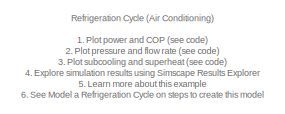
[diagram: root canvas - part 1/3, top right region]
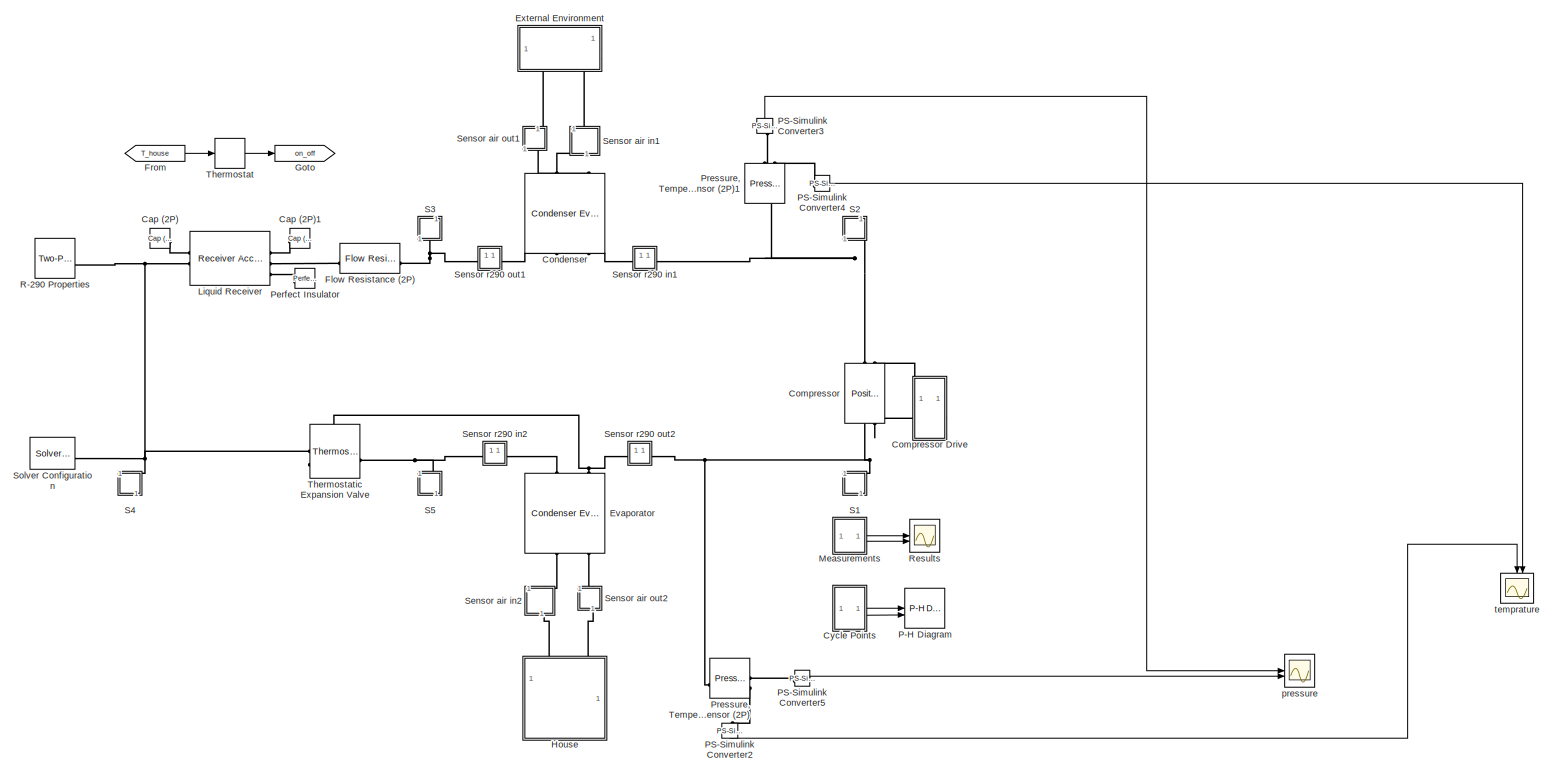
[diagram: root canvas - part 2/3, center side, full height]
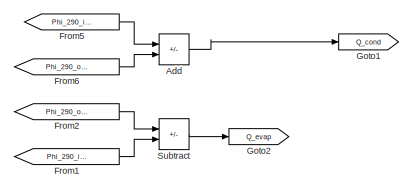
[diagram: root canvas - part 3/3, bottom left region]
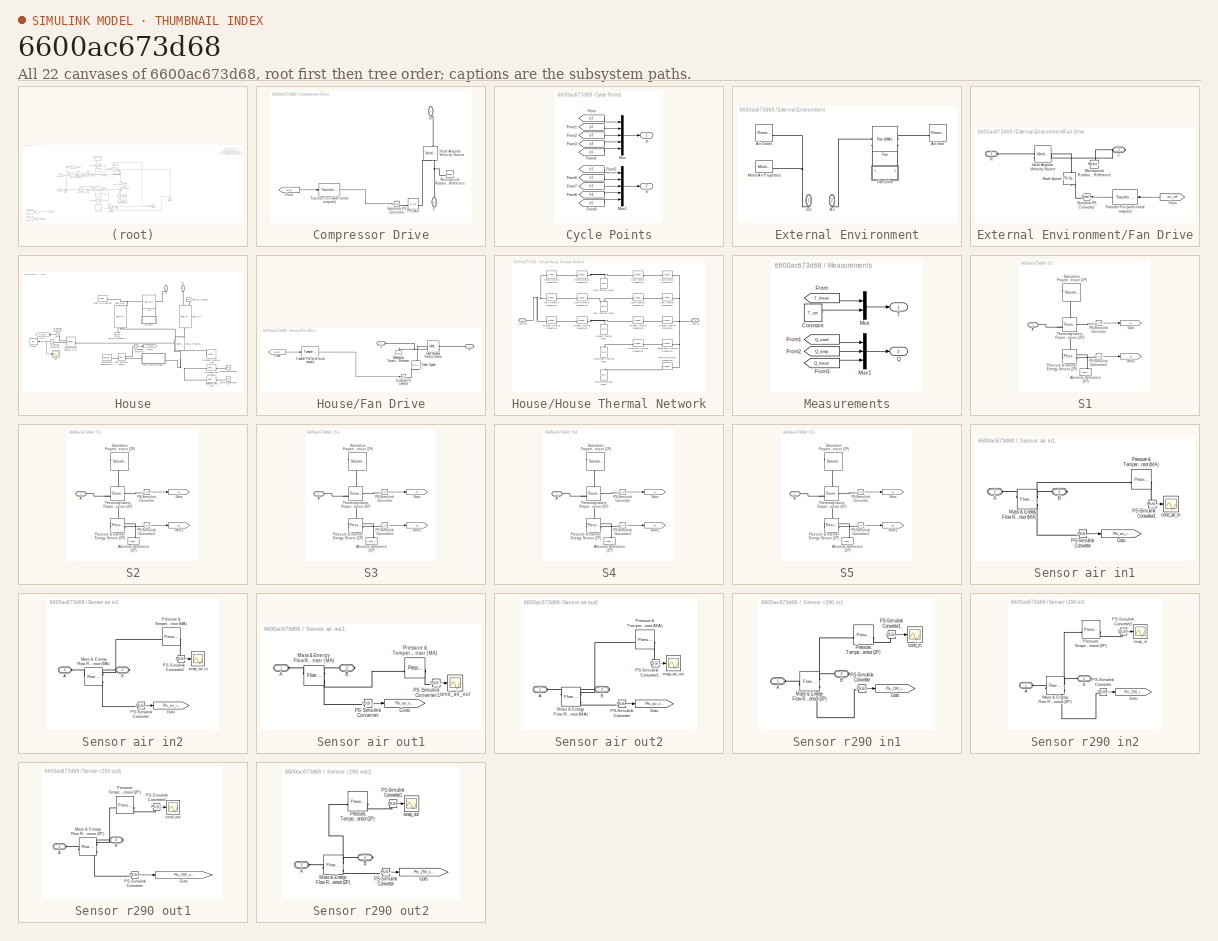
[diagram: thumbnail index - all 22 canvases of the model, root first then tree order]
MODEL slx_6600ac673d68
KIND model
CONFIG AbsTol = 0.01
CONFIG EnableMultiTasking = off
CONFIG FixedStep = 5.0E-5
CONFIG MaxStep = auto
CONFIG MinStep = auto
CONFIG PreLoadFcn = T_env = 30; % [degC] External environment temperature\nRH_env = 0.5; % External environment relative humidity\n\nT_house_init = 30; % [degC] Initial house temperature\nRH_house_init = 0.5; % Initial house relative humidity\n\nT_set = 22; % [deg] Thermostat set point\n\ntube_D = 0.02; % [m] Refrigerant tube diameter\nduct_W = 0.4; % [m] Air duct width\n\nhouse_L = 20; % [m] House length\nhouse_W = 10; % [m] Ho...<+77ch>
CONFIG RelTol = 0.01
CONFIG SampleTimeConstraint = Unconstrained
CONFIG SolverName = daessc
CONFIG StartTime = 0.0
CONFIG StopTime = 3600 * 3
WORKSPACE source: mxarray member
WORKSPACE evp_RPM = 3000
BLOCK [Sum] Add
  IconShape = rectangular
  Inputs = +-
BLOCK [Reference] Cap (2P)  REF=fl_lib/Two-Phase Fluid/Elements/Cap (2P)
  SourceBlock = fl_lib/Two-Phase Fluid/Elements/Cap (2P)
  SourceType = Cap (2P)
BLOCK [Reference] Cap (2P)1  REF=fl_lib/Two-Phase Fluid/Elements/Cap (2P)
  SourceBlock = fl_lib/Two-Phase Fluid/Elements/Cap (2P)
  SourceType = Cap (2P)
BLOCK [Reference] Compressor  REF=SimscapeFluids_lib/Two-Phase Fluid/Fluid Machines/Positive-Displacement
Compressor (2P)
  NameLocation = left
  SourceBlock = SimscapeFluids_lib/Two-Phase Fluid/Fluid Machines/Positive-Displacement\nCompressor (2P)
  SourceType = Positive-Displacement\nCompressor (2P)
BLOCK [SubSystem] Compressor Drive
  NameLocation = right
  PortSchema = {"entries":[{"content":{"sides":[{"content":{"connectorIds":[]},"type":"ConnectorPlacement.EquallySpacedRectSide","uuid":"e1f7673a-ae09-4e38-a748-d03f3a89f634"},{"content":{"connectorIds":[],"side":"RIGHT"},"type":"ConnectorPlacement.EquallySpacedRectSide","uuid":"e2c59df4-5a81-4f6b-ab06-631ef800c0b1"},{"content":{"connectorIds":["LConn1"],"side":"TOP"},"type":"ConnectorPlacement.EquallySpacedRect...<+389ch>
BLOCK [PMIOPort] Compressor Drive/C
  NameLocation = right
  Port = 2
  Side = Right
BLOCK [From] Compressor Drive/From
  GotoTag = on_off
  TagVisibility = global
BLOCK [Reference] Compressor Drive/Ideal Angular Velocity Source  REF=fl_lib/Mechanical/Mechanical Sources/Ideal Angular
Velocity Source
  NameLocation = right
  SourceBlock = fl_lib/Mechanical/Mechanical Sources/Ideal Angular\nVelocity Source
  SourceType = Ideal Angular\nVelocity Source
BLOCK [Reference] Compressor Drive/Mechanical Rotational Reference  REF=fl_lib/Mechanical/Rotational Elements/Mechanical
Rotational Reference
  SourceBlock = fl_lib/Mechanical/Rotational Elements/Mechanical\nRotational Reference
  SourceType = Mechanical\nRotational Reference
BLOCK [Reference] Compressor Drive/PS Gain  REF=fl_lib/Physical Signals/Functions/PS Gain
  SourceBlock = fl_lib/Physical Signals/Functions/PS Gain
  SourceType = PS Gain
BLOCK [PMIOPort] Compressor Drive/R
  NameLocation = right
  Side = Left
BLOCK [Reference] Compressor Drive/Simulink-PS Converter  REF=nesl_utility/Simulink-PS
Converter
  SourceBlock = nesl_utility/Simulink-PS\nConverter
  SourceType = Simulink-PS\nConverter
BLOCK [Reference] Compressor Drive/Transfer Fcn (with initial outputs)  REF=simulink_extras/Additional
Linear/Transfer Fcn
(with initial outputs)
  SourceBlock = simulink_extras/Additional\nLinear/Transfer Fcn\n(with initial outputs)
  SourceType = Transfer Function with Initial Outputs
BLOCK [Reference] Condenser  REF=SimscapeFluids_lib/Heat Exchangers/Two-Phase Fluid -
Moist Air/Condenser Evaporator
(2P-MA)
  NameLocation = left
  SourceBlock = SimscapeFluids_lib/Heat Exchangers/Two-Phase Fluid -\nMoist Air/Condenser Evaporator\n(2P-MA)
  SourceType = Condenser Evaporator\n(2P-MA)
BLOCK [SubSystem] Cycle Points
BLOCK [From] Cycle Points/From
  GotoTag = p1
  TagVisibility = global
BLOCK [From] Cycle Points/From1
  GotoTag = p2
  TagVisibility = global
BLOCK [From] Cycle Points/From2
  GotoTag = p3
  TagVisibility = global
BLOCK [From] Cycle Points/From3
  GotoTag = p4
  TagVisibility = global
BLOCK [From] Cycle Points/From4
  GotoTag = p5
  TagVisibility = global
BLOCK [From] Cycle Points/From5
  GotoTag = h1
  TagVisibility = global
BLOCK [From] Cycle Points/From6
  GotoTag = h2
  TagVisibility = global
BLOCK [From] Cycle Points/From7
  GotoTag = h3
  TagVisibility = global
BLOCK [From] Cycle Points/From8
  GotoTag = h4
  TagVisibility = global
BLOCK [From] Cycle Points/From9
  GotoTag = h5
  TagVisibility = global
BLOCK [Mux] Cycle Points/Mux
  DisplayOption = bar
  Inputs = 5
BLOCK [Mux] Cycle Points/Mux1
  DisplayOption = bar
  Inputs = 5
BLOCK [Outport] Cycle Points/h
  Port = 2
BLOCK [Outport] Cycle Points/p
BLOCK [Reference] Evaporator  REF=SimscapeFluids_lib/Heat Exchangers/Two-Phase Fluid -
Moist Air/Condenser Evaporator
(2P-MA)
  NameLocation = right
  SourceBlock = SimscapeFluids_lib/Heat Exchangers/Two-Phase Fluid -\nMoist Air/Condenser Evaporator\n(2P-MA)
  SourceType = Condenser Evaporator\n(2P-MA)
BLOCK [SubSystem] External Environment
  NameLocation = right
  PortSchema = {"entries":[{"content":{"sides":[{"content":{},"type":"ConnectorPlacement.EquallySpacedRectSide","uuid":"e1f7673a-ae09-4e38-a748-d03f3a89f634"},{"content":{"side":"RIGHT"},"type":"ConnectorPlacement.EquallySpacedRectSide","uuid":"e2c59df4-5a81-4f6b-ab06-631ef800c0b1"},{"content":{"side":"TOP"},"type":"ConnectorPlacement.EquallySpacedRectSide","uuid":"19dd88a8-04e0-4296-a227-9de66059cdf8"},{"conten...<+337ch>
  Tag = PublishSubsystem
BLOCK [PMIOPort] External Environment/A2
  NameLocation = right
  Port = 2
  Side = Right
BLOCK [Reference] External Environment/Air Inlet  REF=fl_lib/Moist Air/Elements/Reservoir (MA)
  SourceBlock = fl_lib/Moist Air/Elements/Reservoir (MA)
  SourceType = Reservoir (MA)
BLOCK [Reference] External Environment/Air Outlet  REF=fl_lib/Moist Air/Elements/Reservoir (MA)
  SourceBlock = fl_lib/Moist Air/Elements/Reservoir (MA)
  SourceType = Reservoir (MA)
BLOCK [PMIOPort] External Environment/B2
  NameLocation = right
  Side = Right
BLOCK [Reference] External Environment/Fan  REF=SimscapeFluids_lib/Moist Air/Turbomachinery/Fan (MA)
  SourceBlock = SimscapeFluids_lib/Moist Air/Turbomachinery/Fan (MA)
  SourceType = Fan (MA)
BLOCK [SubSystem] External Environment/Fan Drive
BLOCK [PMIOPort] External Environment/Fan Drive/C
  Port = 2
  Side = Right
BLOCK [From] External Environment/Fan Drive/From
  GotoTag = on_off
  TagVisibility = global
BLOCK [Reference] External Environment/Fan Drive/Ideal Angular Velocity Source  REF=fl_lib/Mechanical/Mechanical Sources/Ideal Angular
Velocity Source
  SourceBlock = fl_lib/Mechanical/Mechanical Sources/Ideal Angular\nVelocity Source
  SourceType = Ideal Angular\nVelocity Source
BLOCK [Reference] External Environment/Fan Drive/Mechanical Rotational Reference  REF=fl_lib/Mechanical/Rotational Elements/Mechanical
Rotational Reference
  NameLocation = right
  SourceBlock = fl_lib/Mechanical/Rotational Elements/Mechanical\nRotational Reference
  SourceType = Mechanical\nRotational Reference
BLOCK [PMIOPort] External Environment/Fan Drive/R
  Side = Left
BLOCK [Reference] External Environment/Fan Drive/Shaft Speed  REF=fl_lib/Physical Signals/Functions/PS Gain
  NameLocation = left
  SourceBlock = fl_lib/Physical Signals/Functions/PS Gain
  SourceType = PS Gain
BLOCK [Reference] External Environment/Fan Drive/Simulink-PS Converter  REF=nesl_utility/Simulink-PS
Converter
  SourceBlock = nesl_utility/Simulink-PS\nConverter
  SourceType = Simulink-PS\nConverter
BLOCK [Reference] External Environment/Fan Drive/Transfer Fcn (with initial outputs)  REF=simulink_extras/Additional
Linear/Transfer Fcn
(with initial outputs)
  SourceBlock = simulink_extras/Additional\nLinear/Transfer Fcn\n(with initial outputs)
  SourceType = Transfer Function with Initial Outputs
BLOCK [Reference] External Environment/Moist Air Properties  REF=fl_lib/Moist Air/Utilities/Moist Air Properties
(MA)
  SourceBlock = fl_lib/Moist Air/Utilities/Moist Air Properties\n(MA)
  SourceType = Moist Air Properties\n(MA)
BLOCK [Reference] Flow Resistance (2P)  REF=fl_lib/Two-Phase Fluid/Elements/Flow Resistance (2P)
  SourceBlock = fl_lib/Two-Phase Fluid/Elements/Flow Resistance (2P)
  SourceType = Flow Resistance (2P)
BLOCK [From] From
  GotoTag = T_house
  TagVisibility = global
BLOCK [From] From1
  GotoTag = Phi_290_in_evap
  TagVisibility = global
BLOCK [From] From2
  GotoTag = Phi_290_out_evap
  TagVisibility = global
BLOCK [From] From5
  GotoTag = Phi_290_in_cond
  TagVisibility = global
BLOCK [From] From6
  GotoTag = Phi_290_out_cond
  TagVisibility = global
BLOCK [Goto] Goto
  GotoTag = on_off
  TagVisibility = global
BLOCK [Goto] Goto1
  GotoTag = Q_cond
  TagVisibility = global
BLOCK [Goto] Goto2
  GotoTag = Q_evap
  TagVisibility = global
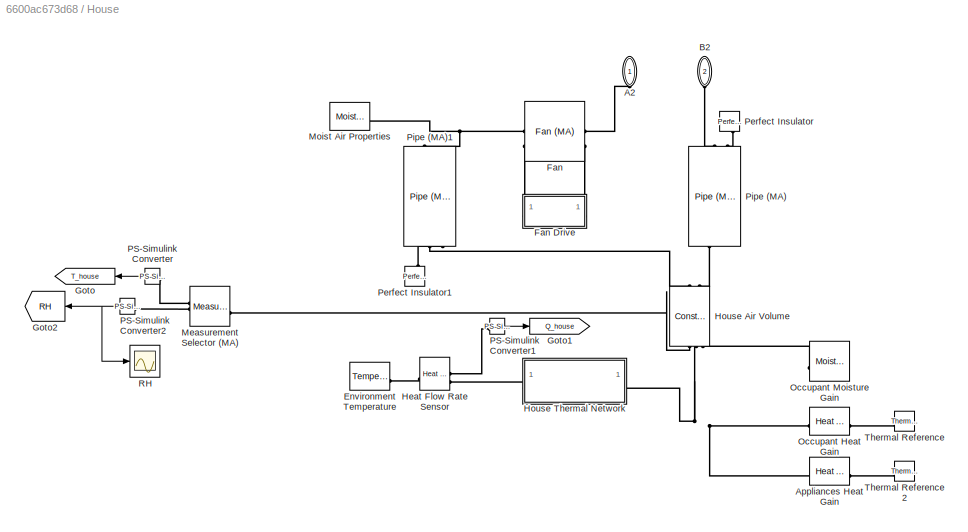
BLOCK [SubSystem] House
  NameLocation = right
  PortSchema = {"entries":[{"content":{"sides":[{"content":{"connectorIds":[]},"type":"ConnectorPlacement.EquallySpacedRectSide","uuid":"e1f7673a-ae09-4e38-a748-d03f3a89f634"},{"content":{"connectorIds":[],"side":"RIGHT"},"type":"ConnectorPlacement.EquallySpacedRectSide","uuid":"e2c59df4-5a81-4f6b-ab06-631ef800c0b1"},{"content":{"connectorIds":["LConn1","LConn2"],"side":"TOP"},"type":"ConnectorPlacement.EquallyS...<+246ch>
  Tag = PublishSubsystem
BLOCK [PMIOPort] House/A2
  NameLocation = right
  Side = Left
BLOCK [Reference] House/Appliances Heat Gain  REF=fl_lib/Thermal/Thermal Sources/Heat Flow Rate
Source
  SourceBlock = fl_lib/Thermal/Thermal Sources/Heat Flow Rate\nSource
  SourceType = Heat Flow Rate\nSource
BLOCK [PMIOPort] House/B2
  NameLocation = right
  Port = 2
  Side = Left
BLOCK [Reference] House/Environment Temperature  REF=fl_lib/Thermal/Thermal Sources/Temperature Source
  SourceBlock = fl_lib/Thermal/Thermal Sources/Temperature Source
  SourceType = Temperature Source
BLOCK [Reference] House/Fan  REF=SimscapeFluids_lib/Moist Air/Turbomachinery/Fan (MA)
  SourceBlock = SimscapeFluids_lib/Moist Air/Turbomachinery/Fan (MA)
  SourceType = Fan (MA)
BLOCK [SubSystem] House/Fan Drive
BLOCK [PMIOPort] House/Fan Drive/C
  Side = Left
BLOCK [From] House/Fan Drive/From
  GotoTag = on_off
  TagVisibility = global
BLOCK [Reference] House/Fan Drive/Ideal Angular Velocity Source  REF=fl_lib/Mechanical/Mechanical Sources/Ideal Angular
Velocity Source
  SourceBlock = fl_lib/Mechanical/Mechanical Sources/Ideal Angular\nVelocity Source
  SourceType = Ideal Angular\nVelocity Source
BLOCK [Reference] House/Fan Drive/Mechanical Rotational Reference  REF=fl_lib/Mechanical/Rotational Elements/Mechanical
Rotational Reference
  NameLocation = right
  SourceBlock = fl_lib/Mechanical/Rotational Elements/Mechanical\nRotational Reference
  SourceType = Mechanical\nRotational Reference
BLOCK [PMIOPort] House/Fan Drive/R
  Port = 2
  Side = Right
BLOCK [Reference] House/Fan Drive/Shaft Speed  REF=fl_lib/Physical Signals/Functions/PS Gain
  NameLocation = right
  SourceBlock = fl_lib/Physical Signals/Functions/PS Gain
  SourceType = PS Gain
BLOCK [Reference] House/Fan Drive/Simulink-PS Converter  REF=nesl_utility/Simulink-PS
Converter
  SourceBlock = nesl_utility/Simulink-PS\nConverter
  SourceType = Simulink-PS\nConverter
BLOCK [Reference] House/Fan Drive/Transfer Fcn (with initial outputs)  REF=simulink_extras/Additional
Linear/Transfer Fcn
(with initial outputs)
  SourceBlock = simulink_extras/Additional\nLinear/Transfer Fcn\n(with initial outputs)
  SourceType = Transfer Function with Initial Outputs
BLOCK [Goto] House/Goto
  GotoTag = T_house
  TagVisibility = global
BLOCK [Goto] House/Goto1
  GotoTag = Q_house
  TagVisibility = global
BLOCK [Goto] House/Goto2
  GotoTag = RH
  TagVisibility = global
BLOCK [Reference] House/Heat Flow Rate Sensor  REF=fl_lib/Thermal/Thermal Sensors/Heat Flow Rate
Sensor
  SourceBlock = fl_lib/Thermal/Thermal Sensors/Heat Flow Rate\nSensor
  SourceType = Heat Flow Rate\nSensor
BLOCK [Reference] House/House Air Volume  REF=fl_lib/Moist Air/Elements/Constant Volume
Chamber (MA)
  NameLocation = right
  SourceBlock = fl_lib/Moist Air/Elements/Constant Volume\nChamber (MA)
  SourceType = Constant Volume\nChamber (MA)
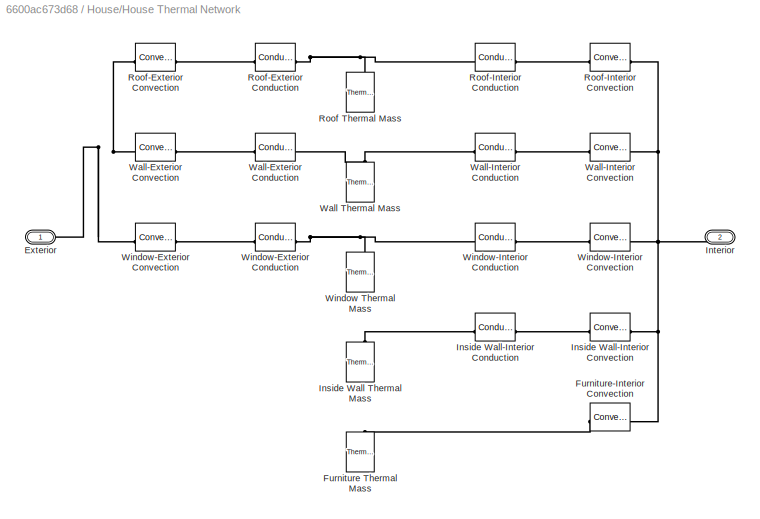
BLOCK [SubSystem] House/House Thermal Network
  Tag = PublishSubsystem
BLOCK [PMIOPort] House/House Thermal Network/Exterior
  Side = Left
BLOCK [Reference] House/House Thermal Network/Furniture Thermal Mass  REF=fl_lib/Thermal/Thermal Elements/Thermal Mass
  NameLocation = right
  SourceBlock = fl_lib/Thermal/Thermal Elements/Thermal Mass
  SourceType = Thermal Mass
BLOCK [Reference] House/House Thermal Network/Furniture-Interior Convection  REF=fl_lib/Thermal/Thermal Elements/Convective Heat
Transfer
  SourceBlock = fl_lib/Thermal/Thermal Elements/Convective Heat\nTransfer
  SourceType = Convective Heat\nTransfer
BLOCK [Reference] House/House Thermal Network/Inside Wall Thermal Mass  REF=fl_lib/Thermal/Thermal Elements/Thermal Mass
  NameLocation = right
  SourceBlock = fl_lib/Thermal/Thermal Elements/Thermal Mass
  SourceType = Thermal Mass
BLOCK [Reference] House/House Thermal Network/Inside Wall-Interior Conduction  REF=fl_lib/Thermal/Thermal Elements/Conductive Heat
Transfer
  SourceBlock = fl_lib/Thermal/Thermal Elements/Conductive Heat\nTransfer
  SourceType = Conductive Heat\nTransfer
BLOCK [Reference] House/House Thermal Network/Inside Wall-Interior Convection  REF=fl_lib/Thermal/Thermal Elements/Convective Heat
Transfer
  SourceBlock = fl_lib/Thermal/Thermal Elements/Convective Heat\nTransfer
  SourceType = Convective Heat\nTransfer
BLOCK [PMIOPort] House/House Thermal Network/Interior
  Port = 2
  Side = Right
BLOCK [Reference] House/House Thermal Network/Roof Thermal Mass  REF=fl_lib/Thermal/Thermal Elements/Thermal Mass
  NameLocation = right
  SourceBlock = fl_lib/Thermal/Thermal Elements/Thermal Mass
  SourceType = Thermal Mass
BLOCK [Reference] House/House Thermal Network/Roof-Exterior Conduction  REF=fl_lib/Thermal/Thermal Elements/Conductive Heat
Transfer
  SourceBlock = fl_lib/Thermal/Thermal Elements/Conductive Heat\nTransfer
  SourceType = Conductive Heat\nTransfer
BLOCK [Reference] House/House Thermal Network/Roof-Exterior Convection  REF=fl_lib/Thermal/Thermal Elements/Convective Heat
Transfer
  SourceBlock = fl_lib/Thermal/Thermal Elements/Convective Heat\nTransfer
  SourceType = Convective Heat\nTransfer
BLOCK [Reference] House/House Thermal Network/Roof-Interior Conduction  REF=fl_lib/Thermal/Thermal Elements/Conductive Heat
Transfer
  SourceBlock = fl_lib/Thermal/Thermal Elements/Conductive Heat\nTransfer
  SourceType = Conductive Heat\nTransfer
BLOCK [Reference] House/House Thermal Network/Roof-Interior Convection  REF=fl_lib/Thermal/Thermal Elements/Convective Heat
Transfer
  SourceBlock = fl_lib/Thermal/Thermal Elements/Convective Heat\nTransfer
  SourceType = Convective Heat\nTransfer
BLOCK [Reference] House/House Thermal Network/Wall Thermal Mass  REF=fl_lib/Thermal/Thermal Elements/Thermal Mass
  NameLocation = right
  SourceBlock = fl_lib/Thermal/Thermal Elements/Thermal Mass
  SourceType = Thermal Mass
BLOCK [Reference] House/House Thermal Network/Wall-Exterior Conduction  REF=fl_lib/Thermal/Thermal Elements/Conductive Heat
Transfer
  SourceBlock = fl_lib/Thermal/Thermal Elements/Conductive Heat\nTransfer
  SourceType = Conductive Heat\nTransfer
BLOCK [Reference] House/House Thermal Network/Wall-Exterior Convection  REF=fl_lib/Thermal/Thermal Elements/Convective Heat
Transfer
  SourceBlock = fl_lib/Thermal/Thermal Elements/Convective Heat\nTransfer
  SourceType = Convective Heat\nTransfer
BLOCK [Reference] House/House Thermal Network/Wall-Interior Conduction  REF=fl_lib/Thermal/Thermal Elements/Conductive Heat
Transfer
  SourceBlock = fl_lib/Thermal/Thermal Elements/Conductive Heat\nTransfer
  SourceType = Conductive Heat\nTransfer
BLOCK [Reference] House/House Thermal Network/Wall-Interior Convection  REF=fl_lib/Thermal/Thermal Elements/Convective Heat
Transfer
  SourceBlock = fl_lib/Thermal/Thermal Elements/Convective Heat\nTransfer
  SourceType = Convective Heat\nTransfer
BLOCK [Reference] House/House Thermal Network/Window Thermal Mass  REF=fl_lib/Thermal/Thermal Elements/Thermal Mass
  NameLocation = right
  SourceBlock = fl_lib/Thermal/Thermal Elements/Thermal Mass
  SourceType = Thermal Mass
BLOCK [Reference] House/House Thermal Network/Window-Exterior Conduction  REF=fl_lib/Thermal/Thermal Elements/Conductive Heat
Transfer
  SourceBlock = fl_lib/Thermal/Thermal Elements/Conductive Heat\nTransfer
  SourceType = Conductive Heat\nTransfer
BLOCK [Reference] House/House Thermal Network/Window-Exterior Convection  REF=fl_lib/Thermal/Thermal Elements/Convective Heat
Transfer
  SourceBlock = fl_lib/Thermal/Thermal Elements/Convective Heat\nTransfer
  SourceType = Convective Heat\nTransfer
BLOCK [Reference] House/House Thermal Network/Window-Interior Conduction  REF=fl_lib/Thermal/Thermal Elements/Conductive Heat
Transfer
  SourceBlock = fl_lib/Thermal/Thermal Elements/Conductive Heat\nTransfer
  SourceType = Conductive Heat\nTransfer
BLOCK [Reference] House/House Thermal Network/Window-Interior Convection  REF=fl_lib/Thermal/Thermal Elements/Convective Heat
Transfer
  SourceBlock = fl_lib/Thermal/Thermal Elements/Convective Heat\nTransfer
  SourceType = Convective Heat\nTransfer
BLOCK [Reference] House/Measurement Selector (MA)  REF=fl_lib/Moist Air/Sensors/Measurement Selector
(MA)
  SourceBlock = fl_lib/Moist Air/Sensors/Measurement Selector\n(MA)
  SourceType = Measurement Selector\n(MA)
BLOCK [Reference] House/Moist Air Properties  REF=fl_lib/Moist Air/Utilities/Moist Air Properties
(MA)
  SourceBlock = fl_lib/Moist Air/Utilities/Moist Air Properties\n(MA)
  SourceType = Moist Air Properties\n(MA)
BLOCK [Reference] House/Occupant Heat Gain  REF=fl_lib/Thermal/Thermal Sources/Heat Flow Rate
Source
  SourceBlock = fl_lib/Thermal/Thermal Sources/Heat Flow Rate\nSource
  SourceType = Heat Flow Rate\nSource
BLOCK [Reference] House/Occupant Moisture Gain  REF=fl_lib/Moist Air/Sources/Moisture & Trace Gas
Sources/Moisture Source (MA)
  SourceBlock = fl_lib/Moist Air/Sources/Moisture & Trace Gas\nSources/Moisture Source (MA)
  SourceType = Moisture Source (MA)
BLOCK [Reference] House/PS-Simulink Converter  REF=nesl_utility/PS-Simulink
Converter
  SourceBlock = nesl_utility/PS-Simulink\nConverter
  SourceType = PS-Simulink\nConverter
BLOCK [Reference] House/PS-Simulink Converter1  REF=nesl_utility/PS-Simulink
Converter
  SourceBlock = nesl_utility/PS-Simulink\nConverter
  SourceType = PS-Simulink\nConverter
BLOCK [Reference] House/PS-Simulink Converter2  REF=nesl_utility/PS-Simulink
Converter
  SourceBlock = nesl_utility/PS-Simulink\nConverter
  SourceType = PS-Simulink\nConverter
BLOCK [Reference] House/Perfect Insulator  REF=fl_lib/Thermal/Thermal Elements/Perfect Insulator
  NameLocation = left
  SourceBlock = fl_lib/Thermal/Thermal Elements/Perfect Insulator
  SourceType = Perfect Insulator
BLOCK [Reference] House/Perfect Insulator1  REF=fl_lib/Thermal/Thermal Elements/Perfect Insulator
  NameLocation = right
  SourceBlock = fl_lib/Thermal/Thermal Elements/Perfect Insulator
  SourceType = Perfect Insulator
BLOCK [Reference] House/Pipe (MA)  REF=fl_lib/Moist Air/Elements/Pipe (MA)
  NameLocation = left
  SourceBlock = fl_lib/Moist Air/Elements/Pipe (MA)
  SourceType = Pipe (MA)
BLOCK [Reference] House/Pipe (MA)1  REF=fl_lib/Moist Air/Elements/Pipe (MA)
  NameLocation = right
  SourceBlock = fl_lib/Moist Air/Elements/Pipe (MA)
  SourceType = Pipe (MA)
BLOCK [Scope] House/RH
  Floating = off
  NumInputPorts = 1
  ScopeSpecificationString = Simulink.scopes.TimeScopeBlockCfg('CurrentConfiguration', extmgr.ConfigurationSet(extmgr.Configuration('Core','General UI',true),extmgr.Configuration('Core','Source UI',true),extmgr.Configuration('Sources','WiredSimulink',true,'DataLoggingVariableName','ScopeData1'),extmgr.Configuration('Visuals','Time Domain',true,'SerializedDisplays',{struct('MinYLimReal','0.49393','MaxYLimReal','0.55462','YLabe...<+1494ch>
BLOCK [Reference] House/Thermal Reference  REF=fl_lib/Thermal/Thermal Elements/Thermal Reference
  SourceBlock = fl_lib/Thermal/Thermal Elements/Thermal Reference
  SourceType = Thermal Reference
BLOCK [Reference] House/Thermal Reference2  REF=fl_lib/Thermal/Thermal Elements/Thermal Reference
  SourceBlock = fl_lib/Thermal/Thermal Elements/Thermal Reference
  SourceType = Thermal Reference
BLOCK [Reference] Liquid Receiver  REF=SimscapeFluids_lib/Two-Phase Fluid/Tanks & Accumulators/Receiver Accumulator
(2P)
  SourceBlock = SimscapeFluids_lib/Two-Phase Fluid/Tanks & Accumulators/Receiver Accumulator\n(2P)
  SourceType = Receiver Accumulator\n(2P)
BLOCK [SubSystem] Measurements
BLOCK [Constant] Measurements/Constant
  Value = T_set
BLOCK [From] Measurements/From
  GotoTag = T_house
  TagVisibility = global
BLOCK [From] Measurements/From1
  GotoTag = Q_cond
  TagVisibility = global
BLOCK [From] Measurements/From2
  GotoTag = Q_evap
  TagVisibility = global
BLOCK [From] Measurements/From3
  GotoTag = Q_house
  TagVisibility = global
BLOCK [Mux] Measurements/Mux
  DisplayOption = bar
  Inputs = 2
BLOCK [Mux] Measurements/Mux1
  DisplayOption = bar
  Inputs = 3
BLOCK [Outport] Measurements/Q
  Port = 2
BLOCK [Outport] Measurements/T
BLOCK [Reference] P-H Diagram  REF=SimscapeFluids_lib/Two-Phase Fluid/Utilities/P-H Diagram (2P)
  SourceBlock = SimscapeFluids_lib/Two-Phase Fluid/Utilities/P-H Diagram (2P)
  SourceType = P-H Diagram (2P)
  UserDataPersistent = on
BLOCK [Reference] PS-Simulink Converter2  REF=nesl_utility/PS-Simulink
Converter
  NameLocation = left
  SourceBlock = nesl_utility/PS-Simulink\nConverter
  SourceType = PS-Simulink\nConverter
BLOCK [Reference] PS-Simulink Converter3  REF=nesl_utility/PS-Simulink
Converter
  NameLocation = right
  SourceBlock = nesl_utility/PS-Simulink\nConverter
  SourceType = PS-Simulink\nConverter
BLOCK [Reference] PS-Simulink Converter4  REF=nesl_utility/PS-Simulink
Converter
  SourceBlock = nesl_utility/PS-Simulink\nConverter
  SourceType = PS-Simulink\nConverter
BLOCK [Reference] PS-Simulink Converter5  REF=nesl_utility/PS-Simulink
Converter
  SourceBlock = nesl_utility/PS-Simulink\nConverter
  SourceType = PS-Simulink\nConverter
BLOCK [Reference] Perfect Insulator  REF=fl_lib/Thermal/Thermal Elements/Perfect Insulator
  SourceBlock = fl_lib/Thermal/Thermal Elements/Perfect Insulator
  SourceType = Perfect Insulator
BLOCK [Reference] Pressure, Temperature & Internal Energy Sensor (2P)  REF=fl_lib/Two-Phase Fluid/Sensors/Pressure,
Temperature &
Internal Energy
Sensor (2P)
  SourceBlock = fl_lib/Two-Phase Fluid/Sensors/Pressure,\nTemperature &\nInternal Energy\nSensor (2P)
  SourceType = Pressure,\nTemperature &\nInternal Energy\nSensor (2P)
BLOCK [Reference] Pressure, Temperature & Internal Energy Sensor (2P)1  REF=fl_lib/Two-Phase Fluid/Sensors/Pressure,
Temperature &
Internal Energy
Sensor (2P)
  NameLocation = right
  SourceBlock = fl_lib/Two-Phase Fluid/Sensors/Pressure,\nTemperature &\nInternal Energy\nSensor (2P)
  SourceType = Pressure,\nTemperature &\nInternal Energy\nSensor (2P)
BLOCK [Reference] R-290 Properties  REF=SimscapeFluids_lib/Two-Phase Fluid/Utilities/Two-Phase Fluid
Predefined
Properties (2P)
  SourceBlock = SimscapeFluids_lib/Two-Phase Fluid/Utilities/Two-Phase Fluid\nPredefined\nProperties (2P)
  SourceType = Two-Phase Fluid\nPredefined\nProperties (2P)
BLOCK [Scope] Results
  Floating = off
  NumInputPorts = 2
  ScopeSpecificationString = Simulink.scopes.TimeScopeBlockCfg('CurrentConfiguration', extmgr.ConfigurationSet(extmgr.Configuration('Core','General UI',true),extmgr.Configuration('Core','Source UI',true),extmgr.Configuration('Sources','WiredSimulink',true),extmgr.Configuration('Visuals','Time Domain',true,'SerializedDisplays',{struct('MinYLimReal','21.00000','MaxYLimReal','31.00002','YLabelReal','','MinYLimMag','21.00000','Ma...<+2876ch>
  Tag = PublishScope
BLOCK [SubSystem] S1
  NameLocation = left
BLOCK [PMIOPort] S1/A
  Side = Left
BLOCK [Reference] S1/Absolute Reference (2P)  REF=fl_lib/Two-Phase Fluid/Elements/Absolute Reference
(2P)
  NameLocation = right
  SourceBlock = fl_lib/Two-Phase Fluid/Elements/Absolute Reference\n(2P)
  SourceType = Absolute Reference\n(2P)
BLOCK [Goto] S1/Goto
  GotoTag = h1
  TagVisibility = global
BLOCK [Goto] S1/Goto1
  GotoTag = p1
  TagVisibility = global
BLOCK [Reference] S1/PS-Simulink Converter  REF=nesl_utility/PS-Simulink
Converter
  SourceBlock = nesl_utility/PS-Simulink\nConverter
  SourceType = PS-Simulink\nConverter
BLOCK [Reference] S1/PS-Simulink Converter1  REF=nesl_utility/PS-Simulink
Converter
  SourceBlock = nesl_utility/PS-Simulink\nConverter
  SourceType = PS-Simulink\nConverter
BLOCK [Reference] S1/Pressure & Internal Energy Sensor (2P)  REF=fl_lib/Two-Phase Fluid/Sensors/Pressure,
Temperature &
Internal Energy
Sensor (2P)
  SourceBlock = fl_lib/Two-Phase Fluid/Sensors/Pressure,\nTemperature &\nInternal Energy\nSensor (2P)
  SourceType = Pressure,\nTemperature &\nInternal Energy\nSensor (2P)
BLOCK [Reference] S1/Saturation Properties Sensor (2P)  REF=fl_lib/Two-Phase Fluid/Sensors/Saturation
Properties Sensor
(2P)
  SourceBlock = fl_lib/Two-Phase Fluid/Sensors/Saturation\nProperties Sensor\n(2P)
  SourceType = Saturation\nProperties Sensor\n(2P)
BLOCK [Reference] S1/Thermodynamic Properties Sensor (2P)  REF=fl_lib/Two-Phase Fluid/Sensors/Thermodynamic
Properties Sensor
(2P)
  SourceBlock = fl_lib/Two-Phase Fluid/Sensors/Thermodynamic\nProperties Sensor\n(2P)
  SourceType = Thermodynamic\nProperties Sensor\n(2P)
BLOCK [SubSystem] S2
  NameLocation = right
BLOCK [PMIOPort] S2/A
  Side = Left
BLOCK [Reference] S2/Absolute Reference (2P)  REF=fl_lib/Two-Phase Fluid/Elements/Absolute Reference
(2P)
  NameLocation = right
  SourceBlock = fl_lib/Two-Phase Fluid/Elements/Absolute Reference\n(2P)
  SourceType = Absolute Reference\n(2P)
BLOCK [Goto] S2/Goto
  GotoTag = h2
  TagVisibility = global
BLOCK [Goto] S2/Goto1
  GotoTag = p2
  TagVisibility = global
BLOCK [Reference] S2/PS-Simulink Converter  REF=nesl_utility/PS-Simulink
Converter
  SourceBlock = nesl_utility/PS-Simulink\nConverter
  SourceType = PS-Simulink\nConverter
BLOCK [Reference] S2/PS-Simulink Converter1  REF=nesl_utility/PS-Simulink
Converter
  SourceBlock = nesl_utility/PS-Simulink\nConverter
  SourceType = PS-Simulink\nConverter
BLOCK [Reference] S2/Pressure & Internal Energy Sensor (2P)  REF=fl_lib/Two-Phase Fluid/Sensors/Pressure,
Temperature &
Internal Energy
Sensor (2P)
  SourceBlock = fl_lib/Two-Phase Fluid/Sensors/Pressure,\nTemperature &\nInternal Energy\nSensor (2P)
  SourceType = Pressure,\nTemperature &\nInternal Energy\nSensor (2P)
BLOCK [Reference] S2/Saturation Properties Sensor (2P)  REF=fl_lib/Two-Phase Fluid/Sensors/Saturation
Properties Sensor
(2P)
  SourceBlock = fl_lib/Two-Phase Fluid/Sensors/Saturation\nProperties Sensor\n(2P)
  SourceType = Saturation\nProperties Sensor\n(2P)
BLOCK [Reference] S2/Thermodynamic Properties Sensor (2P)  REF=fl_lib/Two-Phase Fluid/Sensors/Thermodynamic
Properties Sensor
(2P)
  SourceBlock = fl_lib/Two-Phase Fluid/Sensors/Thermodynamic\nProperties Sensor\n(2P)
  SourceType = Thermodynamic\nProperties Sensor\n(2P)
BLOCK [SubSystem] S3
  NameLocation = right
BLOCK [PMIOPort] S3/A
  Side = Left
BLOCK [Reference] S3/Absolute Reference (2P)  REF=fl_lib/Two-Phase Fluid/Elements/Absolute Reference
(2P)
  NameLocation = right
  SourceBlock = fl_lib/Two-Phase Fluid/Elements/Absolute Reference\n(2P)
  SourceType = Absolute Reference\n(2P)
BLOCK [Goto] S3/Goto
  GotoTag = h3
  TagVisibility = global
BLOCK [Goto] S3/Goto1
  GotoTag = p3
  TagVisibility = global
BLOCK [Reference] S3/PS-Simulink Converter  REF=nesl_utility/PS-Simulink
Converter
  SourceBlock = nesl_utility/PS-Simulink\nConverter
  SourceType = PS-Simulink\nConverter
BLOCK [Reference] S3/PS-Simulink Converter1  REF=nesl_utility/PS-Simulink
Converter
  SourceBlock = nesl_utility/PS-Simulink\nConverter
  SourceType = PS-Simulink\nConverter
BLOCK [Reference] S3/Pressure & Internal Energy Sensor (2P)  REF=fl_lib/Two-Phase Fluid/Sensors/Pressure,
Temperature &
Internal Energy
Sensor (2P)
  SourceBlock = fl_lib/Two-Phase Fluid/Sensors/Pressure,\nTemperature &\nInternal Energy\nSensor (2P)
  SourceType = Pressure,\nTemperature &\nInternal Energy\nSensor (2P)
BLOCK [Reference] S3/Saturation Properties Sensor (2P)  REF=fl_lib/Two-Phase Fluid/Sensors/Saturation
Properties Sensor
(2P)
  SourceBlock = fl_lib/Two-Phase Fluid/Sensors/Saturation\nProperties Sensor\n(2P)
  SourceType = Saturation\nProperties Sensor\n(2P)
BLOCK [Reference] S3/Thermodynamic Properties Sensor (2P)  REF=fl_lib/Two-Phase Fluid/Sensors/Thermodynamic
Properties Sensor
(2P)
  SourceBlock = fl_lib/Two-Phase Fluid/Sensors/Thermodynamic\nProperties Sensor\n(2P)
  SourceType = Thermodynamic\nProperties Sensor\n(2P)
BLOCK [SubSystem] S4
  NameLocation = left
BLOCK [PMIOPort] S4/A
  Side = Left
BLOCK [Reference] S4/Absolute Reference (2P)  REF=fl_lib/Two-Phase Fluid/Elements/Absolute Reference
(2P)
  NameLocation = right
  SourceBlock = fl_lib/Two-Phase Fluid/Elements/Absolute Reference\n(2P)
  SourceType = Absolute Reference\n(2P)
BLOCK [Goto] S4/Goto
  GotoTag = h4
  TagVisibility = global
BLOCK [Goto] S4/Goto1
  GotoTag = p4
  TagVisibility = global
BLOCK [Reference] S4/PS-Simulink Converter  REF=nesl_utility/PS-Simulink
Converter
  SourceBlock = nesl_utility/PS-Simulink\nConverter
  SourceType = PS-Simulink\nConverter
BLOCK [Reference] S4/PS-Simulink Converter1  REF=nesl_utility/PS-Simulink
Converter
  SourceBlock = nesl_utility/PS-Simulink\nConverter
  SourceType = PS-Simulink\nConverter
BLOCK [Reference] S4/Pressure & Internal Energy Sensor (2P)  REF=fl_lib/Two-Phase Fluid/Sensors/Pressure,
Temperature &
Internal Energy
Sensor (2P)
  SourceBlock = fl_lib/Two-Phase Fluid/Sensors/Pressure,\nTemperature &\nInternal Energy\nSensor (2P)
  SourceType = Pressure,\nTemperature &\nInternal Energy\nSensor (2P)
BLOCK [Reference] S4/Saturation Properties Sensor (2P)  REF=fl_lib/Two-Phase Fluid/Sensors/Saturation
Properties Sensor
(2P)
  SourceBlock = fl_lib/Two-Phase Fluid/Sensors/Saturation\nProperties Sensor\n(2P)
  SourceType = Saturation\nProperties Sensor\n(2P)
BLOCK [Reference] S4/Thermodynamic Properties Sensor (2P)  REF=fl_lib/Two-Phase Fluid/Sensors/Thermodynamic
Properties Sensor
(2P)
  SourceBlock = fl_lib/Two-Phase Fluid/Sensors/Thermodynamic\nProperties Sensor\n(2P)
  SourceType = Thermodynamic\nProperties Sensor\n(2P)
BLOCK [SubSystem] S5
  NameLocation = left
BLOCK [PMIOPort] S5/A
  Side = Left
BLOCK [Reference] S5/Absolute Reference (2P)  REF=fl_lib/Two-Phase Fluid/Elements/Absolute Reference
(2P)
  NameLocation = right
  SourceBlock = fl_lib/Two-Phase Fluid/Elements/Absolute Reference\n(2P)
  SourceType = Absolute Reference\n(2P)
BLOCK [Goto] S5/Goto
  GotoTag = h5
  TagVisibility = global
BLOCK [Goto] S5/Goto1
  GotoTag = p5
  TagVisibility = global
BLOCK [Reference] S5/PS-Simulink Converter  REF=nesl_utility/PS-Simulink
Converter
  SourceBlock = nesl_utility/PS-Simulink\nConverter
  SourceType = PS-Simulink\nConverter
BLOCK [Reference] S5/PS-Simulink Converter1  REF=nesl_utility/PS-Simulink
Converter
  SourceBlock = nesl_utility/PS-Simulink\nConverter
  SourceType = PS-Simulink\nConverter
BLOCK [Reference] S5/Pressure & Internal Energy Sensor (2P)  REF=fl_lib/Two-Phase Fluid/Sensors/Pressure,
Temperature &
Internal Energy
Sensor (2P)
  SourceBlock = fl_lib/Two-Phase Fluid/Sensors/Pressure,\nTemperature &\nInternal Energy\nSensor (2P)
  SourceType = Pressure,\nTemperature &\nInternal Energy\nSensor (2P)
BLOCK [Reference] S5/Saturation Properties Sensor (2P)  REF=fl_lib/Two-Phase Fluid/Sensors/Saturation
Properties Sensor
(2P)
  SourceBlock = fl_lib/Two-Phase Fluid/Sensors/Saturation\nProperties Sensor\n(2P)
  SourceType = Saturation\nProperties Sensor\n(2P)
BLOCK [Reference] S5/Thermodynamic Properties Sensor (2P)  REF=fl_lib/Two-Phase Fluid/Sensors/Thermodynamic
Properties Sensor
(2P)
  SourceBlock = fl_lib/Two-Phase Fluid/Sensors/Thermodynamic\nProperties Sensor\n(2P)
  SourceType = Thermodynamic\nProperties Sensor\n(2P)
BLOCK [SubSystem] Sensor air in1
  NameLocation = right
BLOCK [PMIOPort] Sensor air in1/A
  Side = Left
BLOCK [PMIOPort] Sensor air in1/B
  Port = 2
  Side = Right
BLOCK [Goto] Sensor air in1/Goto
  GotoTag = Phi_air_in_1
  TagVisibility = global
BLOCK [Reference] Sensor air in1/Mass & Energy Flow Rate Sensor (MA)  REF=fl_lib/Moist Air/Sensors/Flow Rate Sensor
(MA)
  SourceBlock = fl_lib/Moist Air/Sensors/Flow Rate Sensor\n(MA)
  SourceType = Flow Rate Sensor\n(MA)
BLOCK [Reference] Sensor air in1/PS-Simulink Converter  REF=nesl_utility/PS-Simulink
Converter
  SourceBlock = nesl_utility/PS-Simulink\nConverter
  SourceType = PS-Simulink\nConverter
BLOCK [Reference] Sensor air in1/PS-Simulink Converter1  REF=nesl_utility/PS-Simulink
Converter
  SourceBlock = nesl_utility/PS-Simulink\nConverter
  SourceType = PS-Simulink\nConverter
BLOCK [Reference] Sensor air in1/Pressure & Temperature Sensor (MA)  REF=fl_lib/Moist Air/Sensors/Pressure &
Temperature Sensor
(MA)
  SourceBlock = fl_lib/Moist Air/Sensors/Pressure &\nTemperature Sensor\n(MA)
  SourceType = Pressure &\nTemperature Sensor\n(MA)
BLOCK [Scope] Sensor air in1/cond_air_in
  Floating = off
  NumInputPorts = 1
  ScopeSpecificationString = Simulink.scopes.TimeScopeBlockCfg('CurrentConfiguration', extmgr.ConfigurationSet(extmgr.Configuration('Core','General UI',true),extmgr.Configuration('Core','Source UI',true),extmgr.Configuration('Sources','WiredSimulink',true,'DataLoggingVariableName','ScopeData4'),extmgr.Configuration('Visuals','Time Domain',true,'SerializedDisplays',{struct('MinYLimReal','303.15839','MaxYLimReal','303.1699','YL...<+1532ch>
BLOCK [SubSystem] Sensor air in2
  NameLocation = left
BLOCK [PMIOPort] Sensor air in2/A
  Side = Left
BLOCK [PMIOPort] Sensor air in2/B
  Port = 2
  Side = Right
BLOCK [Goto] Sensor air in2/Goto
  GotoTag = Phi_air_in_2
  TagVisibility = global
BLOCK [Reference] Sensor air in2/Mass & Energy Flow Rate Sensor (MA)  REF=fl_lib/Moist Air/Sensors/Flow Rate Sensor
(MA)
  SourceBlock = fl_lib/Moist Air/Sensors/Flow Rate Sensor\n(MA)
  SourceType = Flow Rate Sensor\n(MA)
BLOCK [Reference] Sensor air in2/PS-Simulink Converter  REF=nesl_utility/PS-Simulink
Converter
  SourceBlock = nesl_utility/PS-Simulink\nConverter
  SourceType = PS-Simulink\nConverter
BLOCK [Reference] Sensor air in2/PS-Simulink Converter1  REF=nesl_utility/PS-Simulink
Converter
  SourceBlock = nesl_utility/PS-Simulink\nConverter
  SourceType = PS-Simulink\nConverter
BLOCK [Reference] Sensor air in2/Pressure & Temperature Sensor (MA)  REF=fl_lib/Moist Air/Sensors/Pressure &
Temperature Sensor
(MA)
  SourceBlock = fl_lib/Moist Air/Sensors/Pressure &\nTemperature Sensor\n(MA)
  SourceType = Pressure &\nTemperature Sensor\n(MA)
BLOCK [Scope] Sensor air in2/evap_air_in
  Floating = off
  NumInputPorts = 1
  ScopeSpecificationString = Simulink.scopes.TimeScopeBlockCfg('CurrentConfiguration', extmgr.ConfigurationSet(extmgr.Configuration('Core','General UI',true),extmgr.Configuration('Core','Source UI',true),extmgr.Configuration('Sources','WiredSimulink',true,'DataLoggingVariableName','ScopeData1'),extmgr.Configuration('Visuals','Time Domain',true,'SerializedDisplays',{struct('MinYLimReal','299.43762','MaxYLimReal','303.6341','YL...<+1534ch>
BLOCK [SubSystem] Sensor air out1
  NameLocation = left
BLOCK [PMIOPort] Sensor air out1/A
  Side = Left
BLOCK [PMIOPort] Sensor air out1/B
  Port = 2
  Side = Right
BLOCK [Goto] Sensor air out1/Goto
  GotoTag = Phi_air_out_1
  TagVisibility = global
BLOCK [Reference] Sensor air out1/Mass & Energy Flow Rate Sensor (MA)  REF=fl_lib/Moist Air/Sensors/Flow Rate Sensor
(MA)
  SourceBlock = fl_lib/Moist Air/Sensors/Flow Rate Sensor\n(MA)
  SourceType = Flow Rate Sensor\n(MA)
BLOCK [Reference] Sensor air out1/PS-Simulink Converter  REF=nesl_utility/PS-Simulink
Converter
  SourceBlock = nesl_utility/PS-Simulink\nConverter
  SourceType = PS-Simulink\nConverter
BLOCK [Reference] Sensor air out1/PS-Simulink Converter1  REF=nesl_utility/PS-Simulink
Converter
  SourceBlock = nesl_utility/PS-Simulink\nConverter
  SourceType = PS-Simulink\nConverter
BLOCK [Reference] Sensor air out1/Pressure & Temperature Sensor (MA)  REF=fl_lib/Moist Air/Sensors/Pressure &
Temperature Sensor
(MA)
  SourceBlock = fl_lib/Moist Air/Sensors/Pressure &\nTemperature Sensor\n(MA)
  SourceType = Pressure &\nTemperature Sensor\n(MA)
BLOCK [Scope] Sensor air out1/cond_air_out
  Floating = off
  NumInputPorts = 1
  ScopeSpecificationString = Simulink.scopes.TimeScopeBlockCfg('CurrentConfiguration', extmgr.ConfigurationSet(extmgr.Configuration('Core','General UI',true),extmgr.Configuration('Core','Source UI',true),extmgr.Configuration('Sources','WiredSimulink',true,'DataLoggingVariableName','ScopeData3'),extmgr.Configuration('Visuals','Time Domain',true,'SerializedDisplays',{struct('MinYLimReal','205.78125','MaxYLimReal','313.96875','Y...<+1509ch>
BLOCK [SubSystem] Sensor air out2
  NameLocation = right
BLOCK [PMIOPort] Sensor air out2/A
  Side = Left
BLOCK [PMIOPort] Sensor air out2/B
  Port = 2
  Side = Right
BLOCK [Goto] Sensor air out2/Goto
  GotoTag = Phi_air_out_2
  TagVisibility = global
BLOCK [Reference] Sensor air out2/Mass & Energy Flow Rate Sensor (MA)  REF=fl_lib/Moist Air/Sensors/Flow Rate Sensor
(MA)
  SourceBlock = fl_lib/Moist Air/Sensors/Flow Rate Sensor\n(MA)
  SourceType = Flow Rate Sensor\n(MA)
BLOCK [Reference] Sensor air out2/PS-Simulink Converter  REF=nesl_utility/PS-Simulink
Converter
  SourceBlock = nesl_utility/PS-Simulink\nConverter
  SourceType = PS-Simulink\nConverter
BLOCK [Reference] Sensor air out2/PS-Simulink Converter1  REF=nesl_utility/PS-Simulink
Converter
  SourceBlock = nesl_utility/PS-Simulink\nConverter
  SourceType = PS-Simulink\nConverter
BLOCK [Reference] Sensor air out2/Pressure & Temperature Sensor (MA)  REF=fl_lib/Moist Air/Sensors/Pressure &
Temperature Sensor
(MA)
  SourceBlock = fl_lib/Moist Air/Sensors/Pressure &\nTemperature Sensor\n(MA)
  SourceType = Pressure &\nTemperature Sensor\n(MA)
BLOCK [Scope] Sensor air out2/evap_air_out
  Floating = off
  NumInputPorts = 1
  ScopeSpecificationString = Simulink.scopes.TimeScopeBlockCfg('CurrentConfiguration', extmgr.ConfigurationSet(extmgr.Configuration('Core','General UI',true),extmgr.Configuration('Core','Source UI',true),extmgr.Configuration('Sources','WiredSimulink',true,'DataLoggingVariableName','ScopeData2'),extmgr.Configuration('Visuals','Time Domain',true,'SerializedDisplays',{struct('MinYLimReal','292.5163','MaxYLimReal','298.78904','YL...<+1580ch>
BLOCK [SubSystem] Sensor r290 in1
BLOCK [PMIOPort] Sensor r290 in1/A
  Side = Left
BLOCK [PMIOPort] Sensor r290 in1/B
  Port = 2
  Side = Right
BLOCK [Goto] Sensor r290 in1/Goto
  GotoTag = Phi_290_in_cond
  TagVisibility = global
BLOCK [Reference] Sensor r290 in1/Mass & Energy Flow Rate Sensor (2P)  REF=fl_lib/Two-Phase Fluid/Sensors/Flow Rate Sensor
(2P)
  SourceBlock = fl_lib/Two-Phase Fluid/Sensors/Flow Rate Sensor\n(2P)
  SourceType = Flow Rate Sensor\n(2P)
BLOCK [Reference] Sensor r290 in1/PS-Simulink Converter  REF=nesl_utility/PS-Simulink
Converter
  SourceBlock = nesl_utility/PS-Simulink\nConverter
  SourceType = PS-Simulink\nConverter
BLOCK [Reference] Sensor r290 in1/PS-Simulink Converter1  REF=nesl_utility/PS-Simulink
Converter
  SourceBlock = nesl_utility/PS-Simulink\nConverter
  SourceType = PS-Simulink\nConverter
BLOCK [Reference] Sensor r290 in1/Pressure, Temperature & Internal Energy Sensor (2P)  REF=fl_lib/Two-Phase Fluid/Sensors/Pressure,
Temperature &
Internal Energy
Sensor (2P)
  SourceBlock = fl_lib/Two-Phase Fluid/Sensors/Pressure,\nTemperature &\nInternal Energy\nSensor (2P)
  SourceType = Pressure,\nTemperature &\nInternal Energy\nSensor (2P)
BLOCK [Scope] Sensor r290 in1/cond_in
  Floating = off
  NumInputPorts = 1
  ScopeSpecificationString = Simulink.scopes.TimeScopeBlockCfg('CurrentConfiguration', extmgr.ConfigurationSet(extmgr.Configuration('Core','General UI',true),extmgr.Configuration('Core','Source UI',true),extmgr.Configuration('Sources','WiredSimulink',true,'DataLoggingVariableName','ScopeData1'),extmgr.Configuration('Visuals','Time Domain',true,'SerializedDisplays',{struct('MinYLimReal','285.56351','MaxYLimReal','422.87401','Y...<+1889ch>
BLOCK [SubSystem] Sensor r290 in2
BLOCK [PMIOPort] Sensor r290 in2/A
  Side = Left
BLOCK [PMIOPort] Sensor r290 in2/B
  Port = 2
  Side = Right
BLOCK [Goto] Sensor r290 in2/Goto
  GotoTag = Phi_290_in_evap
  TagVisibility = global
BLOCK [Reference] Sensor r290 in2/Mass & Energy Flow Rate Sensor (2P)  REF=fl_lib/Two-Phase Fluid/Sensors/Flow Rate Sensor
(2P)
  SourceBlock = fl_lib/Two-Phase Fluid/Sensors/Flow Rate Sensor\n(2P)
  SourceType = Flow Rate Sensor\n(2P)
BLOCK [Reference] Sensor r290 in2/PS-Simulink Converter  REF=nesl_utility/PS-Simulink
Converter
  SourceBlock = nesl_utility/PS-Simulink\nConverter
  SourceType = PS-Simulink\nConverter
BLOCK [Reference] Sensor r290 in2/PS-Simulink Converter1  REF=nesl_utility/PS-Simulink
Converter
  SourceBlock = nesl_utility/PS-Simulink\nConverter
  SourceType = PS-Simulink\nConverter
BLOCK [Reference] Sensor r290 in2/Pressure, Temperature & Internal Energy Sensor (2P)  REF=fl_lib/Two-Phase Fluid/Sensors/Pressure,
Temperature &
Internal Energy
Sensor (2P)
  SourceBlock = fl_lib/Two-Phase Fluid/Sensors/Pressure,\nTemperature &\nInternal Energy\nSensor (2P)
  SourceType = Pressure,\nTemperature &\nInternal Energy\nSensor (2P)
BLOCK [Scope] Sensor r290 in2/evap_in
  Floating = off
  NumInputPorts = 1
  ScopeSpecificationString = Simulink.scopes.TimeScopeBlockCfg('CurrentConfiguration', extmgr.ConfigurationSet(extmgr.Configuration('Core','General UI',true),extmgr.Configuration('Core','Source UI',true),extmgr.Configuration('Sources','WiredSimulink',true,'DataLoggingVariableName','ScopeData2'),extmgr.Configuration('Visuals','Time Domain',true,'SerializedDisplays',{struct('MinYLimReal','297.50841','MaxYLimReal','350.73768','Y...<+1863ch>
BLOCK [SubSystem] Sensor r290 out1
BLOCK [PMIOPort] Sensor r290 out1/A
  Side = Left
BLOCK [PMIOPort] Sensor r290 out1/B
  Port = 2
  Side = Right
BLOCK [Goto] Sensor r290 out1/Goto
  GotoTag = Phi_290_out_cond
  TagVisibility = global
BLOCK [Reference] Sensor r290 out1/Mass & Energy Flow Rate Sensor (2P)  REF=fl_lib/Two-Phase Fluid/Sensors/Flow Rate Sensor
(2P)
  SourceBlock = fl_lib/Two-Phase Fluid/Sensors/Flow Rate Sensor\n(2P)
  SourceType = Flow Rate Sensor\n(2P)
BLOCK [Reference] Sensor r290 out1/PS-Simulink Converter  REF=nesl_utility/PS-Simulink
Converter
  SourceBlock = nesl_utility/PS-Simulink\nConverter
  SourceType = PS-Simulink\nConverter
BLOCK [Reference] Sensor r290 out1/PS-Simulink Converter1  REF=nesl_utility/PS-Simulink
Converter
  SourceBlock = nesl_utility/PS-Simulink\nConverter
  SourceType = PS-Simulink\nConverter
BLOCK [Reference] Sensor r290 out1/Pressure, Temperature & Internal Energy Sensor (2P)  REF=fl_lib/Two-Phase Fluid/Sensors/Pressure,
Temperature &
Internal Energy
Sensor (2P)
  SourceBlock = fl_lib/Two-Phase Fluid/Sensors/Pressure,\nTemperature &\nInternal Energy\nSensor (2P)
  SourceType = Pressure,\nTemperature &\nInternal Energy\nSensor (2P)
BLOCK [Scope] Sensor r290 out1/cond_out
  Floating = off
  NumInputPorts = 1
  ScopeSpecificationString = Simulink.scopes.TimeScopeBlockCfg('CurrentConfiguration', extmgr.ConfigurationSet(extmgr.Configuration('Core','General UI',true),extmgr.Configuration('Core','Source UI',true),extmgr.Configuration('Sources','WiredSimulink',true,'DataLoggingVariableName','ScopeData2'),extmgr.Configuration('Visuals','Time Domain',true,'SerializedDisplays',{struct('MinYLimReal','297.50841','MaxYLimReal','350.73768','Y...<+1863ch>
BLOCK [SubSystem] Sensor r290 out2
BLOCK [PMIOPort] Sensor r290 out2/A
  Side = Left
BLOCK [PMIOPort] Sensor r290 out2/B
  Port = 2
  Side = Right
BLOCK [Goto] Sensor r290 out2/Goto
  GotoTag = Phi_290_out_evap
  TagVisibility = global
BLOCK [Reference] Sensor r290 out2/Mass & Energy Flow Rate Sensor (2P)  REF=fl_lib/Two-Phase Fluid/Sensors/Flow Rate Sensor
(2P)
  SourceBlock = fl_lib/Two-Phase Fluid/Sensors/Flow Rate Sensor\n(2P)
  SourceType = Flow Rate Sensor\n(2P)
BLOCK [Reference] Sensor r290 out2/PS-Simulink Converter  REF=nesl_utility/PS-Simulink
Converter
  SourceBlock = nesl_utility/PS-Simulink\nConverter
  SourceType = PS-Simulink\nConverter
BLOCK [Reference] Sensor r290 out2/PS-Simulink Converter1  REF=nesl_utility/PS-Simulink
Converter
  SourceBlock = nesl_utility/PS-Simulink\nConverter
  SourceType = PS-Simulink\nConverter
BLOCK [Reference] Sensor r290 out2/Pressure, Temperature & Internal Energy Sensor (2P)  REF=fl_lib/Two-Phase Fluid/Sensors/Pressure,
Temperature &
Internal Energy
Sensor (2P)
  SourceBlock = fl_lib/Two-Phase Fluid/Sensors/Pressure,\nTemperature &\nInternal Energy\nSensor (2P)
  SourceType = Pressure,\nTemperature &\nInternal Energy\nSensor (2P)
BLOCK [Scope] Sensor r290 out2/evap_out
  Floating = off
  NumInputPorts = 1
  ScopeSpecificationString = Simulink.scopes.TimeScopeBlockCfg('CurrentConfiguration', extmgr.ConfigurationSet(extmgr.Configuration('Core','General UI',true),extmgr.Configuration('Core','Source UI',true),extmgr.Configuration('Sources','WiredSimulink',true,'DataLoggingVariableName','ScopeData3'),extmgr.Configuration('Visuals','Time Domain',true,'SerializedDisplays',{struct('MinYLimReal','297.50841','MaxYLimReal','350.73768','Y...<+1863ch>
BLOCK [Reference] Solver Configuration  REF=nesl_utility/Solver
Configuration
  SourceBlock = nesl_utility/Solver\nConfiguration
  SourceType = Solver\nConfiguration
BLOCK [Sum] Subtract
  IconShape = rectangular
  Inputs = +-
BLOCK [Relay] Thermostat
  OffSwitchValue = T_set - 1
  OnSwitchValue = T_set + 1
  ZeroCross = off
BLOCK [Reference] Thermostatic Expansion Valve  REF=SimscapeFluids_lib/Two-Phase Fluid/Valves & Orifices/Flow Control Valves/Thermostatic
Expansion Valve (2P)
  SourceBlock = SimscapeFluids_lib/Two-Phase Fluid/Valves & Orifices/Flow Control Valves/Thermostatic\nExpansion Valve (2P)
  SourceType = Thermostatic\nExpansion Valve (2P)
BLOCK [Scope] pressure
  Floating = off
  NumInputPorts = 2
  ScopeSpecificationString = Simulink.scopes.TimeScopeBlockCfg('CurrentConfiguration', extmgr.ConfigurationSet(extmgr.Configuration('Core','General UI',true),extmgr.Configuration('Core','Source UI',true),extmgr.Configuration('Sources','WiredSimulink',true,'DataLoggingVariableName','ScopeData1'),extmgr.Configuration('Visuals','Time Domain',true,'SerializedDisplays',{struct('MinYLimReal','-0.15718','MaxYLimReal','2.41168','YLab...<+1957ch>
BLOCK [Scope] temprature
  Floating = off
  NumInputPorts = 2
  ScopeSpecificationString = Simulink.scopes.TimeScopeBlockCfg('CurrentConfiguration', extmgr.ConfigurationSet(extmgr.Configuration('Core','General UI',true),extmgr.Configuration('Core','Source UI',true),extmgr.Configuration('Sources','WiredSimulink',true,'DataLoggingVariableName','ScopeData1'),extmgr.Configuration('Visuals','Time Domain',true,'SerializedDisplays',{struct('MinYLimReal','276.19409','MaxYLimReal','423.91505','Y...<+1950ch>
ANNOTATION (root): 1. Plot power and COP ( see code ) 2. Plot pressure and flow rate ( see code ) 3. Plot subcooling and superheat ( see code ) 4. Explore simulation results using Simscape Results Explorer 5. Learn more about this example 6. See Model a Refrigeration Cycle on steps to create this model <copyright redacted>
ANNOTATION (root): Refrigeration Cycle (Air Conditioning)
LINE Add:1 -> Goto1:1
LINE Compressor Drive/From:1 -> Compressor Drive/Transfer Fcn (with initial outputs):1
LINE Compressor Drive/Transfer Fcn (with initial outputs):1 -> Compressor Drive/Simulink-PS Converter:1
LINE Cycle Points/From1:1 -> Cycle Points/Mux:2
LINE Cycle Points/From2:1 -> Cycle Points/Mux:3
LINE Cycle Points/From3:1 -> Cycle Points/Mux:4
LINE Cycle Points/From4:1 -> Cycle Points/Mux:5
LINE Cycle Points/From5:1 -> Cycle Points/Mux1:1
LINE Cycle Points/From6:1 -> Cycle Points/Mux1:2
LINE Cycle Points/From7:1 -> Cycle Points/Mux1:3
LINE Cycle Points/From8:1 -> Cycle Points/Mux1:4
LINE Cycle Points/From9:1 -> Cycle Points/Mux1:5
LINE Cycle Points/From:1 -> Cycle Points/Mux:1
LINE Cycle Points/Mux1:1 -> Cycle Points/h:1
LINE Cycle Points/Mux:1 -> Cycle Points/p:1
LINE Cycle Points:1 -> P-H Diagram:1
LINE Cycle Points:2 -> P-H Diagram:2
LINE External Environment/Fan Drive/From:1 -> External Environment/Fan Drive/Transfer Fcn (with initial outputs):1
LINE External Environment/Fan Drive/Transfer Fcn (with initial outputs):1 -> External Environment/Fan Drive/Simulink-PS Converter:1
LINE From1:1 -> Subtract:2
LINE From2:1 -> Subtract:1
LINE From5:1 -> Add:1
LINE From6:1 -> Add:2
LINE From:1 -> Thermostat:1
LINE House/Fan Drive/From:1 -> House/Fan Drive/Transfer Fcn (with initial outputs):1
LINE House/Fan Drive/Transfer Fcn (with initial outputs):1 -> House/Fan Drive/Simulink-PS Converter:1
LINE House/PS-Simulink Converter1:1 -> House/Goto1:1
NET House/PS-Simulink Converter2:1 -> House/Goto2:1, House/RH:1
LINE House/PS-Simulink Converter:1 -> House/Goto:1
LINE Measurements/Constant:1 -> Measurements/Mux:2
LINE Measurements/From1:1 -> Measurements/Mux1:1
LINE Measurements/From2:1 -> Measurements/Mux1:2
LINE Measurements/From3:1 -> Measurements/Mux1:3
LINE Measurements/From:1 -> Measurements/Mux:1
LINE Measurements/Mux1:1 -> Measurements/Q:1
LINE Measurements/Mux:1 -> Measurements/T:1
LINE Measurements:1 -> Results:1
LINE Measurements:2 -> Results:2
LINE PS-Simulink Converter2:1 -> temprature:1
LINE PS-Simulink Converter3:1 -> pressure:1
LINE PS-Simulink Converter4:1 -> temprature:2
LINE PS-Simulink Converter5:1 -> pressure:2
LINE S1/PS-Simulink Converter1:1 -> S1/Goto1:1
LINE S1/PS-Simulink Converter:1 -> S1/Goto:1
LINE S2/PS-Simulink Converter1:1 -> S2/Goto1:1
LINE S2/PS-Simulink Converter:1 -> S2/Goto:1
LINE S3/PS-Simulink Converter1:1 -> S3/Goto1:1
LINE S3/PS-Simulink Converter:1 -> S3/Goto:1
LINE S4/PS-Simulink Converter1:1 -> S4/Goto1:1
LINE S4/PS-Simulink Converter:1 -> S4/Goto:1
LINE S5/PS-Simulink Converter1:1 -> S5/Goto1:1
LINE S5/PS-Simulink Converter:1 -> S5/Goto:1
LINE Sensor air in1/PS-Simulink Converter1:1 -> Sensor air in1/cond_air_in:1
LINE Sensor air in1/PS-Simulink Converter:1 -> Sensor air in1/Goto:1
LINE Sensor air in2/PS-Simulink Converter1:1 -> Sensor air in2/evap_air_in:1
LINE Sensor air in2/PS-Simulink Converter:1 -> Sensor air in2/Goto:1
LINE Sensor air out1/PS-Simulink Converter1:1 -> Sensor air out1/cond_air_out:1
LINE Sensor air out1/PS-Simulink Converter:1 -> Sensor air out1/Goto:1
LINE Sensor air out2/PS-Simulink Converter1:1 -> Sensor air out2/evap_air_out:1
LINE Sensor air out2/PS-Simulink Converter:1 -> Sensor air out2/Goto:1
LINE Sensor r290 in1/PS-Simulink Converter1:1 -> Sensor r290 in1/cond_in:1
LINE Sensor r290 in1/PS-Simulink Converter:1 -> Sensor r290 in1/Goto:1
LINE Sensor r290 in2/PS-Simulink Converter1:1 -> Sensor r290 in2/evap_in:1
LINE Sensor r290 in2/PS-Simulink Converter:1 -> Sensor r290 in2/Goto:1
LINE Sensor r290 out1/PS-Simulink Converter1:1 -> Sensor r290 out1/cond_out:1
LINE Sensor r290 out1/PS-Simulink Converter:1 -> Sensor r290 out1/Goto:1
LINE Sensor r290 out2/PS-Simulink Converter1:1 -> Sensor r290 out2/evap_out:1
LINE Sensor r290 out2/PS-Simulink Converter:1 -> Sensor r290 out2/Goto:1
LINE Subtract:1 -> Goto2:1
LINE Thermostat:1 -> Goto:1
PLINE Cap (2P)1:LConn1 -- Liquid Receiver:LConn1
PLINE Cap (2P):LConn1 -- Liquid Receiver:RConn1
PNET net1: Compressor Drive/C:RConn1 -- Compressor Drive/Ideal Angular Velocity Source:RConn2 -- Compressor Drive/Mechanical Rotational Reference:LConn1
PLINE Compressor Drive/Ideal Angular Velocity Source:LConn1 -- Compressor Drive/R:RConn1
PLINE Compressor Drive/Ideal Angular Velocity Source:RConn1 -- Compressor Drive/PS Gain:RConn1
PLINE Compressor Drive/PS Gain:LConn1 -- Compressor Drive/Simulink-PS Converter:RConn1
PLINE Compressor Drive:LConn1 -- Compressor:RConn2
PLINE Compressor Drive:RConn1 -- Compressor:LConn2
PNET net2: Compressor:LConn1 -- Pressure, Temperature & Internal Energy Sensor (2P):LConn1 -- S1:LConn1 -- Sensor r290 out2:RConn1
PNET net3: Compressor:RConn1 -- Pressure, Temperature & Internal Energy Sensor (2P)1:LConn1 -- S2:LConn1 -- Sensor r290 in1:LConn1
PLINE Condenser:LConn1 -- Sensor r290 in1:RConn1
PLINE Condenser:LConn3 -- Sensor r290 out1:LConn1
PLINE Condenser:RConn1 -- Sensor air in1:RConn1
PLINE Condenser:RConn3 -- Sensor air out1:LConn1
PLINE Evaporator:LConn1 -- Sensor r290 in2:RConn1
PNET net4: Evaporator:LConn3 -- Sensor r290 out2:LConn1 -- Thermostatic Expansion Valve:LConn2
PLINE Evaporator:RConn1 -- Sensor air in2:LConn1
PLINE Evaporator:RConn3 -- Sensor air out2:LConn1
PLINE External Environment/A2:RConn1 -- External Environment/Fan:RConn1
PLINE External Environment/Air Inlet:LConn1 -- External Environment/Fan:LConn1
PNET net5: External Environment/Air Outlet:LConn1 -- External Environment/B2:RConn1 -- External Environment/Moist Air Properties:RConn1
PNET net6: External Environment/Fan Drive/C:RConn1 -- External Environment/Fan Drive/Ideal Angular Velocity Source:RConn2 -- External Environment/Fan Drive/Mechanical Rotational Reference:LConn1
PLINE External Environment/Fan Drive/Ideal Angular Velocity Source:LConn1 -- External Environment/Fan Drive/R:RConn1
PLINE External Environment/Fan Drive/Ideal Angular Velocity Source:RConn1 -- External Environment/Fan Drive/Shaft Speed:RConn1
PLINE External Environment/Fan Drive/Shaft Speed:LConn1 -- External Environment/Fan Drive/Simulink-PS Converter:RConn1
PLINE External Environment/Fan Drive:LConn1 -- External Environment/Fan:RConn2
PLINE External Environment/Fan Drive:RConn1 -- External Environment/Fan:LConn2
PLINE External Environment:RConn1 -- Sensor air out1:RConn1
PLINE External Environment:RConn2 -- Sensor air in1:LConn1
PNET net7: Flow Resistance (2P):LConn1 -- S3:LConn1 -- Sensor r290 out1:RConn1
PLINE Flow Resistance (2P):RConn1 -- Liquid Receiver:LConn2
PLINE House/A2:RConn1 -- House/Fan:RConn1
PNET net8: House/Appliances Heat Gain:LConn1 -- House/House Air Volume:RConn3 -- House/House Thermal Network:RConn1 -- House/Occupant Heat Gain:LConn1
PLINE House/Appliances Heat Gain:RConn1 -- House/Thermal Reference2:LConn1
PLINE House/B2:RConn1 -- House/Pipe (MA):LConn1
PLINE House/Environment Temperature:LConn1 -- House/Heat Flow Rate Sensor:LConn1
PNET net9: House/Fan Drive/C:RConn1 -- House/Fan Drive/Ideal Angular Velocity Source:RConn2 -- House/Fan Drive/Mechanical Rotational Reference:LConn1
PLINE House/Fan Drive/Ideal Angular Velocity Source:LConn1 -- House/Fan Drive/R:RConn1
PLINE House/Fan Drive/Ideal Angular Velocity Source:RConn1 -- House/Fan Drive/Shaft Speed:RConn1
PLINE House/Fan Drive/Shaft Speed:LConn1 -- House/Fan Drive/Simulink-PS Converter:RConn1
PLINE House/Fan Drive:LConn1 -- House/Fan:LConn2
PLINE House/Fan Drive:RConn1 -- House/Fan:RConn2
PNET net10: House/Fan:LConn1 -- House/Moist Air Properties:RConn1 -- House/Pipe (MA)1:RConn1
PLINE House/Heat Flow Rate Sensor:RConn1 -- House/PS-Simulink Converter1:LConn1
PLINE House/Heat Flow Rate Sensor:RConn2 -- House/House Thermal Network:LConn1
PLINE House/House Air Volume:LConn1 -- House/Pipe (MA)1:LConn1
PLINE House/House Air Volume:LConn2 -- House/Pipe (MA):RConn1
PLINE House/House Air Volume:RConn2 -- House/Measurement Selector (MA):LConn1
PLINE House/House Air Volume:RConn4 -- House/Occupant Moisture Gain:LConn1
PNET net11: House/House Thermal Network/Exterior:RConn1 -- House/House Thermal Network/Roof-Exterior Convection:LConn1 -- House/House Thermal Network/Wall-Exterior Convection:LConn1 -- House/House Thermal Network/Window-Exterior Convection:LConn1
PLINE House/House Thermal Network/Furniture Thermal Mass:LConn1 -- House/House Thermal Network/Furniture-Interior Convection:LConn1
PNET net12: House/House Thermal Network/Furniture-Interior Convection:RConn1 -- House/House Thermal Network/Inside Wall-Interior Convection:RConn1 -- House/House Thermal Network/Interior:RConn1 -- House/House Thermal Network/Roof-Interior Convection:RConn1 -- House/House Thermal Network/Wall-Interior Convection:RConn1 -- House/House Thermal Network/Window-Interior Convection:RConn1
PLINE House/House Thermal Network/Inside Wall Thermal Mass:LConn1 -- House/House Thermal Network/Inside Wall-Interior Conduction:LConn1
PLINE House/House Thermal Network/Inside Wall-Interior Conduction:RConn1 -- House/House Thermal Network/Inside Wall-Interior Convection:LConn1
PNET net13: House/House Thermal Network/Roof Thermal Mass:LConn1 -- House/House Thermal Network/Roof-Exterior Conduction:RConn1 -- House/House Thermal Network/Roof-Interior Conduction:LConn1
PLINE House/House Thermal Network/Roof-Exterior Conduction:LConn1 -- House/House Thermal Network/Roof-Exterior Convection:RConn1
PLINE House/House Thermal Network/Roof-Interior Conduction:RConn1 -- House/House Thermal Network/Roof-Interior Convection:LConn1
PNET net14: House/House Thermal Network/Wall Thermal Mass:LConn1 -- House/House Thermal Network/Wall-Exterior Conduction:RConn1 -- House/House Thermal Network/Wall-Interior Conduction:LConn1
PLINE House/House Thermal Network/Wall-Exterior Conduction:LConn1 -- House/House Thermal Network/Wall-Exterior Convection:RConn1
PLINE House/House Thermal Network/Wall-Interior Conduction:RConn1 -- House/House Thermal Network/Wall-Interior Convection:LConn1
PNET net15: House/House Thermal Network/Window Thermal Mass:LConn1 -- House/House Thermal Network/Window-Exterior Conduction:RConn1 -- House/House Thermal Network/Window-Interior Conduction:LConn1
PLINE House/House Thermal Network/Window-Exterior Conduction:LConn1 -- House/House Thermal Network/Window-Exterior Convection:RConn1
PLINE House/House Thermal Network/Window-Interior Conduction:RConn1 -- House/House Thermal Network/Window-Interior Convection:LConn1
PLINE House/Measurement Selector (MA):RConn2 -- House/PS-Simulink Converter:LConn1
PLINE House/Measurement Selector (MA):RConn3 -- House/PS-Simulink Converter2:LConn1
PLINE House/Occupant Heat Gain:RConn1 -- House/Thermal Reference:LConn1
PLINE House/Perfect Insulator1:LConn1 -- House/Pipe (MA)1:LConn2
PLINE House/Perfect Insulator:LConn1 -- House/Pipe (MA):LConn2
PLINE House:LConn1 -- Sensor air in2:RConn1
PLINE House:LConn2 -- Sensor air out2:RConn1
PLINE Liquid Receiver:LConn3 -- Perfect Insulator:LConn1
PNET net16: Liquid Receiver:RConn2 -- R-290 Properties:RConn1 -- S4:LConn1 -- Solver Configuration:RConn1 -- Thermostatic Expansion Valve:LConn1
PLINE PS-Simulink Converter2:LConn1 -- Pressure, Temperature & Internal Energy Sensor (2P):RConn2
PLINE PS-Simulink Converter3:LConn1 -- Pressure, Temperature & Internal Energy Sensor (2P)1:RConn1
PLINE PS-Simulink Converter4:LConn1 -- Pressure, Temperature & Internal Energy Sensor (2P)1:RConn2
PLINE PS-Simulink Converter5:LConn1 -- Pressure, Temperature & Internal Energy Sensor (2P):RConn1
PNET net17: S1/A:RConn1 -- S1/Pressure & Internal Energy Sensor (2P):LConn1 -- S1/Saturation Properties Sensor (2P):LConn1 -- S1/Thermodynamic Properties Sensor (2P):LConn1
PLINE S1/Absolute Reference (2P):LConn1 -- S1/Pressure & Internal Energy Sensor (2P):RConn1
PLINE S1/PS-Simulink Converter1:LConn1 -- S1/Pressure & Internal Energy Sensor (2P):RConn2
PLINE S1/PS-Simulink Converter:LConn1 -- S1/Thermodynamic Properties Sensor (2P):RConn2
PNET net18: S2/A:RConn1 -- S2/Pressure & Internal Energy Sensor (2P):LConn1 -- S2/Saturation Properties Sensor (2P):LConn1 -- S2/Thermodynamic Properties Sensor (2P):LConn1
PLINE S2/Absolute Reference (2P):LConn1 -- S2/Pressure & Internal Energy Sensor (2P):RConn1
PLINE S2/PS-Simulink Converter1:LConn1 -- S2/Pressure & Internal Energy Sensor (2P):RConn2
PLINE S2/PS-Simulink Converter:LConn1 -- S2/Thermodynamic Properties Sensor (2P):RConn2
PNET net19: S3/A:RConn1 -- S3/Pressure & Internal Energy Sensor (2P):LConn1 -- S3/Saturation Properties Sensor (2P):LConn1 -- S3/Thermodynamic Properties Sensor (2P):LConn1
PLINE S3/Absolute Reference (2P):LConn1 -- S3/Pressure & Internal Energy Sensor (2P):RConn1
PLINE S3/PS-Simulink Converter1:LConn1 -- S3/Pressure & Internal Energy Sensor (2P):RConn2
PLINE S3/PS-Simulink Converter:LConn1 -- S3/Thermodynamic Properties Sensor (2P):RConn2
PNET net20: S4/A:RConn1 -- S4/Pressure & Internal Energy Sensor (2P):LConn1 -- S4/Saturation Properties Sensor (2P):LConn1 -- S4/Thermodynamic Properties Sensor (2P):LConn1
PLINE S4/Absolute Reference (2P):LConn1 -- S4/Pressure & Internal Energy Sensor (2P):RConn1
PLINE S4/PS-Simulink Converter1:LConn1 -- S4/Pressure & Internal Energy Sensor (2P):RConn2
PLINE S4/PS-Simulink Converter:LConn1 -- S4/Thermodynamic Properties Sensor (2P):RConn2
PNET net21: S5/A:RConn1 -- S5/Pressure & Internal Energy Sensor (2P):LConn1 -- S5/Saturation Properties Sensor (2P):LConn1 -- S5/Thermodynamic Properties Sensor (2P):LConn1
PLINE S5/Absolute Reference (2P):LConn1 -- S5/Pressure & Internal Energy Sensor (2P):RConn1
PLINE S5/PS-Simulink Converter1:LConn1 -- S5/Pressure & Internal Energy Sensor (2P):RConn2
PLINE S5/PS-Simulink Converter:LConn1 -- S5/Thermodynamic Properties Sensor (2P):RConn2
PNET net22: S5:LConn1 -- Sensor r290 in2:LConn1 -- Thermostatic Expansion Valve:RConn1
PLINE Sensor air in1/A:RConn1 -- Sensor air in1/Mass & Energy Flow Rate Sensor (MA):LConn1
PNET net23: Sensor air in1/B:RConn1 -- Sensor air in1/Mass & Energy Flow Rate Sensor (MA):RConn1 -- Sensor air in1/Pressure & Temperature Sensor (MA):LConn1
PLINE Sensor air in1/Mass & Energy Flow Rate Sensor (MA):RConn3 -- Sensor air in1/PS-Simulink Converter:LConn1
PLINE Sensor air in1/PS-Simulink Converter1:LConn1 -- Sensor air in1/Pressure & Temperature Sensor (MA):RConn1
PLINE Sensor air in2/A:RConn1 -- Sensor air in2/Mass & Energy Flow Rate Sensor (MA):LConn1
PNET net24: Sensor air in2/B:RConn1 -- Sensor air in2/Mass & Energy Flow Rate Sensor (MA):RConn1 -- Sensor air in2/Pressure & Temperature Sensor (MA):LConn1
PLINE Sensor air in2/Mass & Energy Flow Rate Sensor (MA):RConn3 -- Sensor air in2/PS-Simulink Converter:LConn1
PLINE Sensor air in2/PS-Simulink Converter1:LConn1 -- Sensor air in2/Pressure & Temperature Sensor (MA):RConn1
PLINE Sensor air out1/A:RConn1 -- Sensor air out1/Mass & Energy Flow Rate Sensor (MA):LConn1
PNET net25: Sensor air out1/B:RConn1 -- Sensor air out1/Mass & Energy Flow Rate Sensor (MA):RConn1 -- Sensor air out1/Pressure & Temperature Sensor (MA):LConn1
PLINE Sensor air out1/Mass & Energy Flow Rate Sensor (MA):RConn3 -- Sensor air out1/PS-Simulink Converter:LConn1
PLINE Sensor air out1/PS-Simulink Converter1:LConn1 -- Sensor air out1/Pressure & Temperature Sensor (MA):RConn1
PLINE Sensor air out2/A:RConn1 -- Sensor air out2/Mass & Energy Flow Rate Sensor (MA):LConn1
PNET net26: Sensor air out2/B:RConn1 -- Sensor air out2/Mass & Energy Flow Rate Sensor (MA):RConn1 -- Sensor air out2/Pressure & Temperature Sensor (MA):LConn1
PLINE Sensor air out2/Mass & Energy Flow Rate Sensor (MA):RConn3 -- Sensor air out2/PS-Simulink Converter:LConn1
PLINE Sensor air out2/PS-Simulink Converter1:LConn1 -- Sensor air out2/Pressure & Temperature Sensor (MA):RConn1
PLINE Sensor r290 in1/A:RConn1 -- Sensor r290 in1/Mass & Energy Flow Rate Sensor (2P):LConn1
PNET net27: Sensor r290 in1/B:RConn1 -- Sensor r290 in1/Mass & Energy Flow Rate Sensor (2P):RConn1 -- Sensor r290 in1/Pressure, Temperature & Internal Energy Sensor (2P):LConn1
PLINE Sensor r290 in1/Mass & Energy Flow Rate Sensor (2P):RConn3 -- Sensor r290 in1/PS-Simulink Converter:LConn1
PLINE Sensor r290 in1/PS-Simulink Converter1:LConn1 -- Sensor r290 in1/Pressure, Temperature & Internal Energy Sensor (2P):RConn1
PLINE Sensor r290 in2/A:RConn1 -- Sensor r290 in2/Mass & Energy Flow Rate Sensor (2P):LConn1
PNET net28: Sensor r290 in2/B:RConn1 -- Sensor r290 in2/Mass & Energy Flow Rate Sensor (2P):RConn1 -- Sensor r290 in2/Pressure, Temperature & Internal Energy Sensor (2P):LConn1
PLINE Sensor r290 in2/Mass & Energy Flow Rate Sensor (2P):RConn3 -- Sensor r290 in2/PS-Simulink Converter:LConn1
PLINE Sensor r290 in2/PS-Simulink Converter1:LConn1 -- Sensor r290 in2/Pressure, Temperature & Internal Energy Sensor (2P):RConn1
PLINE Sensor r290 out1/A:RConn1 -- Sensor r290 out1/Mass & Energy Flow Rate Sensor (2P):LConn1
PNET net29: Sensor r290 out1/B:RConn1 -- Sensor r290 out1/Mass & Energy Flow Rate Sensor (2P):RConn1 -- Sensor r290 out1/Pressure, Temperature & Internal Energy Sensor (2P):LConn1
PLINE Sensor r290 out1/Mass & Energy Flow Rate Sensor (2P):RConn3 -- Sensor r290 out1/PS-Simulink Converter:LConn1
PLINE Sensor r290 out1/PS-Simulink Converter1:LConn1 -- Sensor r290 out1/Pressure, Temperature & Internal Energy Sensor (2P):RConn1
PLINE Sensor r290 out2/A:RConn1 -- Sensor r290 out2/Mass & Energy Flow Rate Sensor (2P):LConn1
PNET net30: Sensor r290 out2/B:RConn1 -- Sensor r290 out2/Mass & Energy Flow Rate Sensor (2P):RConn1 -- Sensor r290 out2/Pressure, Temperature & Internal Energy Sensor (2P):LConn1
PLINE Sensor r290 out2/Mass & Energy Flow Rate Sensor (2P):RConn3 -- Sensor r290 out2/PS-Simulink Converter:LConn1
PLINE Sensor r290 out2/PS-Simulink Converter1:LConn1 -- Sensor r290 out2/Pressure, Temperature & Internal Energy Sensor (2P):RConn1
note: NET lines group one-source signal fan-out (src -> all destinations, sorted); 1:1 wires keep LINE; PNET lines group multi-terminal physical nets as a canonical sorted terminal list (undirected conserving connections); 2-terminal nets keep the pairwise PLINE form
